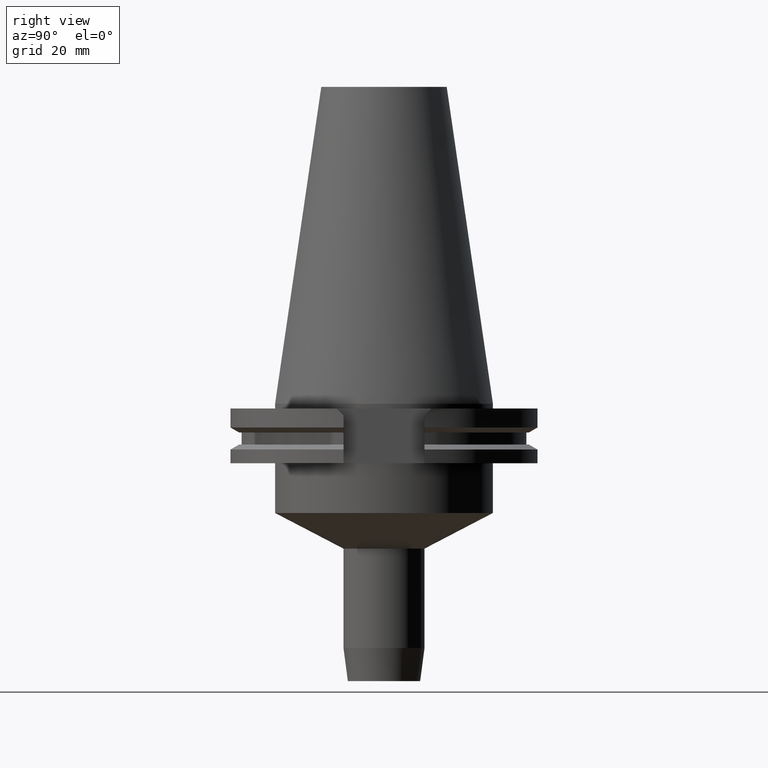
[diagram: clean part render]
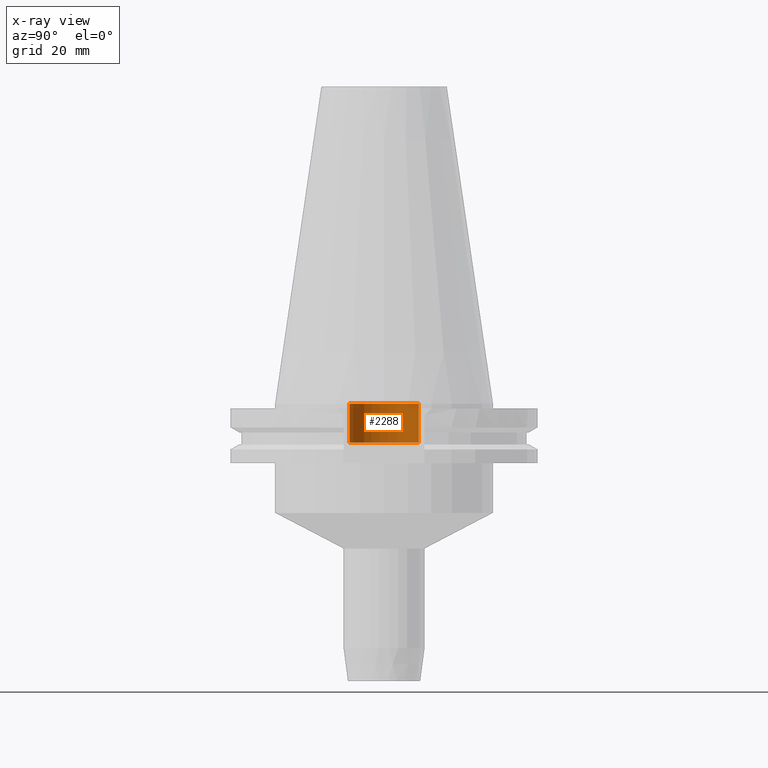
[diagram: x-ray — body ghosted, one internal face saturated and labeled with its STEP entity id]
A machine part, right view, then the same camera in x-ray: the body is ghosted and one INTERNAL B-rep face — a face not visible from any outside direction — is saturated and labeled: STEP entity #2288.
In plain terms, the highlighted cylindrical surface (edge-blend (fillet) strip) has radius 11.15 mm, axis along (0, 0, -1).
Its self-contained STEP definition (entity closure, byte-faithful):
#1090=CARTESIAN_POINT('',(0.E0,2.585535554700E-14,-1.24E1));
#1091=DIRECTION('',(0.E0,0.E0,-1.E0));
#1092=DIRECTION('',(0.E0,-1.E0,0.E0));
#1093=AXIS2_PLACEMENT_3D('',#1090,#1091,#1092);
#1122=DIRECTION('',(0.E0,0.E0,1.E0));
#1123=VECTOR('',#1122,1.24E1);
#1124=CARTESIAN_POINT('',(0.E0,-1.115E1,-1.24E1));
#1125=LINE('',#1124,#1123);
#1129=CARTESIAN_POINT('',(0.E0,2.585535554700E-14,0.E0));
#1130=DIRECTION('',(0.E0,0.E0,-1.E0));
#1131=DIRECTION('',(0.E0,-1.E0,0.E0));
#1132=AXIS2_PLACEMENT_3D('',#1129,#1130,#1131);
#1137=DIRECTION('',(0.E0,0.E0,1.E0));
#1138=VECTOR('',#1137,1.24E1);
#1139=CARTESIAN_POINT('',(0.E0,1.115E1,-1.24E1));
#1140=LINE('',#1139,#1138);
#1228=CARTESIAN_POINT('',(0.E0,1.115E1,0.E0));
#1229=VERTEX_POINT('',#1228);
#1230=CARTESIAN_POINT('',(0.E0,-1.115E1,0.E0));
#1231=VERTEX_POINT('',#1230);
#1232=CARTESIAN_POINT('',(0.E0,1.115E1,-1.24E1));
#1233=VERTEX_POINT('',#1232);
#1234=CARTESIAN_POINT('',(0.E0,-1.115E1,-1.24E1));
#1235=VERTEX_POINT('',#1234);
#2274=CARTESIAN_POINT('',(0.E0,2.585535554700E-14,1.11125E2));
#2275=DIRECTION('',(0.E0,0.E0,-1.E0));
#2276=DIRECTION('',(0.E0,-1.E0,0.E0));
#2277=AXIS2_PLACEMENT_3D('',#2274,#2275,#2276);
#2278=CYLINDRICAL_SURFACE('',#2277,1.115E1);
#2280=ORIENTED_EDGE('',*,*,#2279,.F.);
#2281=ORIENTED_EDGE('',*,*,#2263,.F.);
#2283=ORIENTED_EDGE('',*,*,#2282,.T.);
#2285=ORIENTED_EDGE('',*,*,#2284,.T.);
#2286=EDGE_LOOP('',(#2280,#2281,#2283,#2285));
#2287=FACE_OUTER_BOUND('',#2286,.F.);
#1094=CIRCLE('',#1093,1.115E1);
#1133=CIRCLE('',#1132,1.115E1);
#2263=EDGE_CURVE('',#1235,#1233,#1094,.T.);
#2279=EDGE_CURVE('',#1233,#1229,#1140,.T.);
#2282=EDGE_CURVE('',#1235,#1231,#1125,.T.);
#2284=EDGE_CURVE('',#1231,#1229,#1133,.T.);
#2288=ADVANCED_FACE('',(#2287),#2278,.F.);